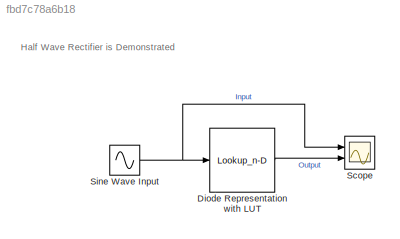
MODEL slx_fbd7c78a6b18
KIND model
CONFIG AbsTol = auto
CONFIG EnableMultiTasking = off
CONFIG FixedStep = auto
CONFIG MaxStep = auto
CONFIG MinStep = auto
CONFIG PreLoadFcn = clearvars\nDiode_IV_DataPoints
CONFIG RelTol = 1e-3
CONFIG SampleTimeConstraint = Unconstrained
CONFIG SolverName = VariableStepAuto
CONFIG StartTime = 0.0
CONFIG StopTime = 1
BLOCK [Lookup_n-D] Diode Representation with LUT
  BreakpointsForDimension1 = V
  InputPortMap = u0
  InternalRulePriority = Speed
  InterpMethod = Linear Lagrange
  NumberOfTableDimensions = 1
  Ports = [1, 1]
  RndMeth = Simplest
  Table = I
BLOCK [Scope] Scope
  Floating = off
  NumInputPorts = 2
  Ports = [2]
  ScopeSpecificationString = Simulink.scopes.TimeScopeBlockCfg('CurrentConfiguration', extmgr.ConfigurationSet(extmgr.Configuration('Core','General UI',true),extmgr.Configuration('Core','Source UI',true),extmgr.Configuration('Sources','WiredSimulink',true),extmgr.Configuration('Visuals','Time Domain',true,'SerializedDisplays',{struct('MinYLimReal','-5.9441','MaxYLimReal','5.9441','YLabelReal','','MinYLimMag','0.00000','MaxYLi...<+2050ch>
BLOCK [Sin] Sine Wave Input
  Amplitude = 5
  Frequency = 2*pi*5
  Ports = [0, 1]
  SampleTime = 0
ANNOTATION (root): Half Wave Rectifier is Demonstrated
LINE Diode Representation with LUT:1 -> Scope:2
NET Sine Wave Input:1 -> Diode Representation with LUT:1, Scope:1
note: NET lines group one-source signal fan-out (src -> all destinations, sorted); 1:1 wires keep LINE
